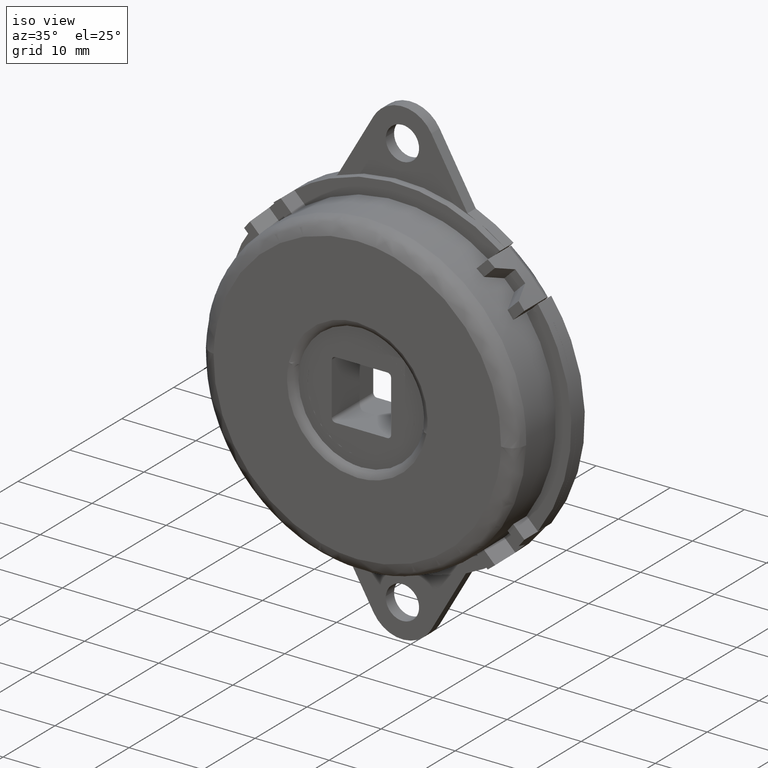
[diagram: clean part render]
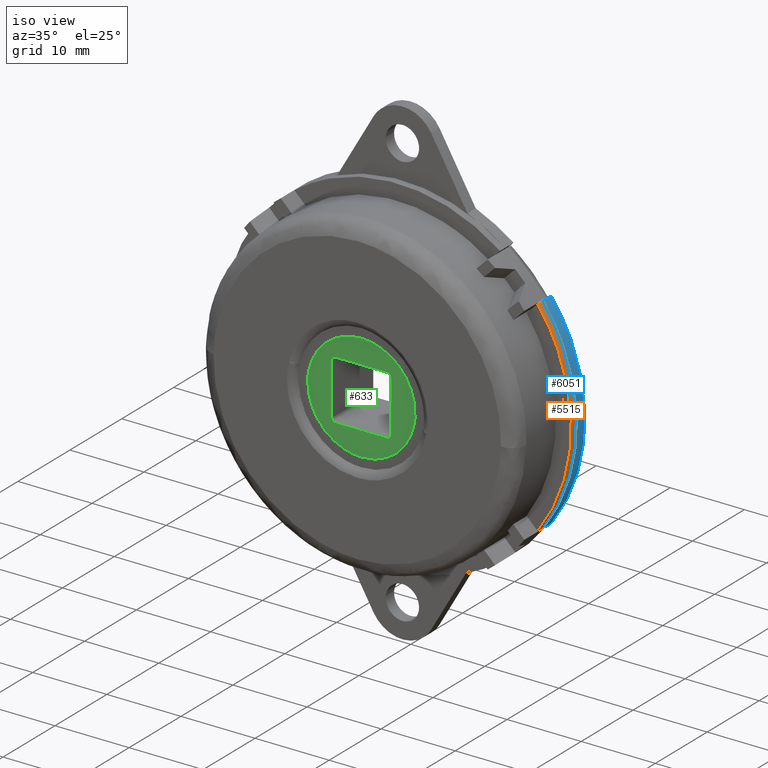
[diagram: same view with three faces highlighted in distinct colors, each labeled with its STEP entity id]
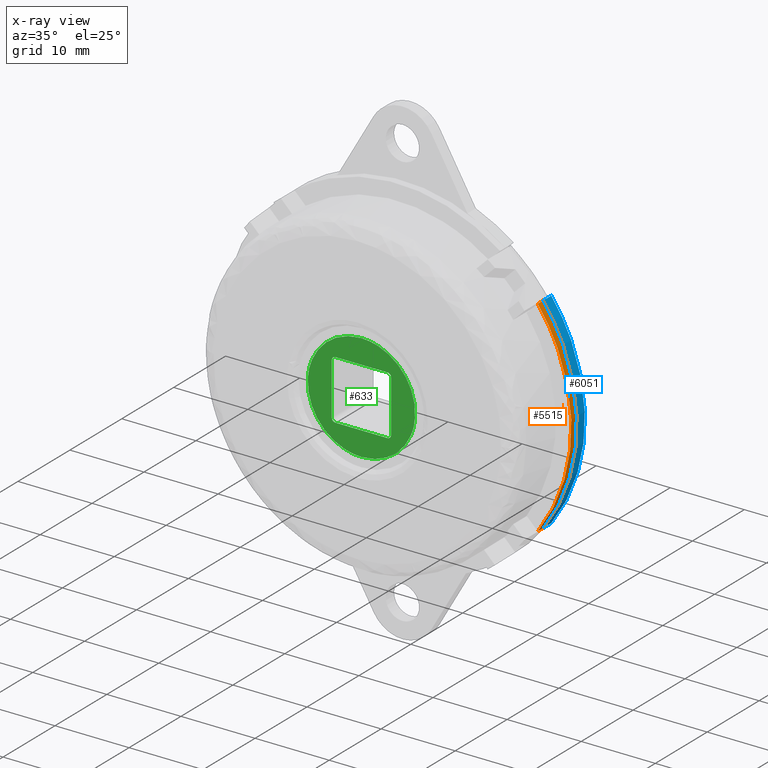
[diagram: x-ray of the same camera — body ghosted, the three highlighted faces saturated]
A machine part, iso view with three faces highlighted in distinct colors.
The next image is the same camera in x-ray (body ghosted, the three faces saturated) — at least one of them is partly hidden behind the body in this view.
Their STEP definitions:

[orange] entity #5515 — the highlighted face is a freeform B-spline surface patch.
#3506=CARTESIAN_POINT('',(18.966455291727549,-1.610000000000110,13.875286435490240));
#3507=VERTEX_POINT('',#3506);
#3513=CARTESIAN_POINT('',(18.966455291727549,-1.610000000000110,-13.875286435490240));
#3514=VERTEX_POINT('',#3513);
#3515=CARTESIAN_POINT('',(18.966455291727559,-1.610000000000110,-13.875286435490249));
#3516=CARTESIAN_POINT('',(29.117196202754354,-1.610000000000111,-5.204170E-015));
#3517=CARTESIAN_POINT('',(18.966455291727559,-1.610000000000110,13.875286435490240));
#3525=(BOUNDED_CURVE()B_SPLINE_CURVE(2,(#3515,#3516,#3517),.UNSPECIFIED.,.F.,.U.)CURVE()GEOMETRIC_REPRESENTATION_ITEM()QUASI_UNIFORM_CURVE()RATIONAL_B_SPLINE_CURVE((1.0,0.807083203903301,1.0))REPRESENTATION_ITEM(''));
#3526=EDGE_CURVE('',#3514,#3507,#3525,.T.);
#4465=CARTESIAN_POINT('',(18.966455291727549,-2.600000000000045,-13.875286435490240));
#4466=VERTEX_POINT('',#4465);
#4467=CARTESIAN_POINT('',(18.966455291727549,-1.610000000000110,-13.875286435490240));
#4468=CARTESIAN_POINT('',(18.966455291727549,-2.600000000000045,-13.875286435490240));
#4469=QUASI_UNIFORM_CURVE('',1,(#4467,#4468),.UNSPECIFIED.,.F.,.U.);
#4470=EDGE_CURVE('',#3514,#4466,#4469,.T.);
#4619=CARTESIAN_POINT('',(18.966455291727549,-2.600000000000045,13.875286435490240));
#4620=VERTEX_POINT('',#4619);
#4626=CARTESIAN_POINT('',(18.966455291727549,-1.610000000000110,13.875286435490240));
#4627=CARTESIAN_POINT('',(18.966455291727549,-2.600000000000045,13.875286435490240));
#4628=QUASI_UNIFORM_CURVE('',1,(#4626,#4627),.UNSPECIFIED.,.F.,.U.);
#4629=EDGE_CURVE('',#3507,#4620,#4628,.T.);
#5483=CARTESIAN_POINT('',(18.596743305418091,-2.624750000000043,-14.367015641126979));
#5484=CARTESIAN_POINT('',(18.596743305418091,-1.584631250000111,-14.367015641126979));
#5485=CARTESIAN_POINT('',(30.024783561698946,-2.624750000000043,0.425501917054557));
#5486=CARTESIAN_POINT('',(30.024783561698946,-1.584631250000111,0.425501917054557));
#5487=CARTESIAN_POINT('',(18.182146974931399,-2.624750000000043,14.888234663048291));
#5488=CARTESIAN_POINT('',(18.182146974931399,-1.584631250000111,14.888234663048291));
#5496=(BOUNDED_SURFACE()B_SPLINE_SURFACE(1,2,((#5483,#5485,#5487),(#5484,#5486,#5488)),.UNSPECIFIED.,.F.,.F.,.U.)B_SPLINE_SURFACE_WITH_KNOTS((2,2),(3,3),(0.0,1.0),(0.0,32.826269541624733),.UNSPECIFIED.)GEOMETRIC_REPRESENTATION_ITEM()RATIONAL_B_SPLINE_SURFACE(((1.0,0.782608156852414,1.0),(1.0,0.782608156852414,1.0)))REPRESENTATION_ITEM('')SURFACE());
#5497=ORIENTED_EDGE('',*,*,#4470,.F.);
#5498=ORIENTED_EDGE('',*,*,#3526,.T.);
#5499=ORIENTED_EDGE('',*,*,#4629,.T.);
#5500=CARTESIAN_POINT('',(18.966455291727559,-2.600000000000000,-13.875286435490249));
#5501=CARTESIAN_POINT('',(29.117196202754357,-2.600000000000001,-1.489802E-015));
#5502=CARTESIAN_POINT('',(18.966455291727549,-2.600000000000045,13.875286435490240));
#5510=(BOUNDED_CURVE()B_SPLINE_CURVE(2,(#5500,#5501,#5502),.UNSPECIFIED.,.F.,.U.)CURVE()GEOMETRIC_REPRESENTATION_ITEM()QUASI_UNIFORM_CURVE()RATIONAL_B_SPLINE_CURVE((1.0,0.807083203903300,1.0))REPRESENTATION_ITEM(''));
#5511=EDGE_CURVE('',#4466,#4620,#5510,.T.);
#5512=ORIENTED_EDGE('',*,*,#5511,.F.);
#5513=EDGE_LOOP('',(#5497,#5498,#5499,#5512));
#5514=FACE_OUTER_BOUND('',#5513,.T.);
#5515=ADVANCED_FACE('',(#5514),#5496,.T.);

[blue] entity #6051 — the highlighted face is a freeform B-spline surface patch.
#3471=CARTESIAN_POINT('',(18.966455291727549,-1.600000000000155,-13.875286435490240));
#3472=VERTEX_POINT('',#3471);
#3478=CARTESIAN_POINT('',(18.966455291727549,-1.600000000000155,13.875286435490240));
#3479=VERTEX_POINT('',#3478);
#3480=CARTESIAN_POINT('',(18.966455291727559,-1.600000000000155,-13.875286435490249));
#3481=CARTESIAN_POINT('',(29.117196202754354,-1.600000000000155,-5.204170E-015));
#3482=CARTESIAN_POINT('',(18.966455291727559,-1.600000000000155,13.875286435490240));
#3490=(BOUNDED_CURVE()B_SPLINE_CURVE(2,(#3480,#3481,#3482),.UNSPECIFIED.,.F.,.U.)CURVE()GEOMETRIC_REPRESENTATION_ITEM()QUASI_UNIFORM_CURVE()RATIONAL_B_SPLINE_CURVE((1.0,0.807083203903301,1.0))REPRESENTATION_ITEM(''));
#3491=EDGE_CURVE('',#3472,#3479,#3490,.T.);
#5722=CARTESIAN_POINT('',(18.966455291727549,0.0,13.875286435490240));
#5723=VERTEX_POINT('',#5722);
#5729=CARTESIAN_POINT('',(18.966455291727549,0.0,-13.875286435490240));
#5730=VERTEX_POINT('',#5729);
#5731=CARTESIAN_POINT('',(18.966455291727559,0.0,-13.875286435490249));
#5732=CARTESIAN_POINT('',(29.117196202754354,0.0,-5.204170E-015));
#5733=CARTESIAN_POINT('',(18.966455291727559,0.0,13.875286435490240));
#5741=(BOUNDED_CURVE()B_SPLINE_CURVE(2,(#5731,#5732,#5733),.UNSPECIFIED.,.F.,.U.)CURVE()GEOMETRIC_REPRESENTATION_ITEM()QUASI_UNIFORM_CURVE()RATIONAL_B_SPLINE_CURVE((1.0,0.807083203903301,1.0))REPRESENTATION_ITEM(''));
#5742=EDGE_CURVE('',#5730,#5723,#5741,.T.);
#6007=CARTESIAN_POINT('',(18.966455291727549,0.0,-13.875286435490240));
#6008=CARTESIAN_POINT('',(18.966455291727549,-1.600000000000155,-13.875286435490240));
#6009=QUASI_UNIFORM_CURVE('',1,(#6007,#6008),.UNSPECIFIED.,.F.,.U.);
#6010=EDGE_CURVE('',#5730,#3472,#6009,.T.);
#6022=CARTESIAN_POINT('',(18.966455291727549,0.0,13.875286435490240));
#6023=CARTESIAN_POINT('',(18.966455291727549,-1.600000000000155,13.875286435490240));
#6024=QUASI_UNIFORM_CURVE('',1,(#6022,#6023),.UNSPECIFIED.,.F.,.U.);
#6025=EDGE_CURVE('',#5723,#3479,#6024,.T.);
#6031=CARTESIAN_POINT('',(18.596743305418091,-1.640000000000159,-14.367015641126979));
#6032=CARTESIAN_POINT('',(18.596743305418091,0.041000000000004,-14.367015641126979));
#6033=CARTESIAN_POINT('',(30.024783561698946,-1.640000000000159,0.425501917054557));
#6034=CARTESIAN_POINT('',(30.024783561698946,0.041000000000004,0.425501917054557));
#6035=CARTESIAN_POINT('',(18.182146974931399,-1.640000000000159,14.888234663048291));
#6036=CARTESIAN_POINT('',(18.182146974931399,0.041000000000004,14.888234663048291));
#6044=(BOUNDED_SURFACE()B_SPLINE_SURFACE(1,2,((#6031,#6033,#6035),(#6032,#6034,#6036)),.UNSPECIFIED.,.F.,.F.,.U.)B_SPLINE_SURFACE_WITH_KNOTS((2,2),(3,3),(0.0,1.0),(0.0,32.826269541624733),.UNSPECIFIED.)GEOMETRIC_REPRESENTATION_ITEM()RATIONAL_B_SPLINE_SURFACE(((1.0,0.782608156852414,1.0),(1.0,0.782608156852414,1.0)))REPRESENTATION_ITEM('')SURFACE());
#6045=ORIENTED_EDGE('',*,*,#3491,.F.);
#6046=ORIENTED_EDGE('',*,*,#6010,.F.);
#6047=ORIENTED_EDGE('',*,*,#5742,.T.);
#6048=ORIENTED_EDGE('',*,*,#6025,.T.);
#6049=EDGE_LOOP('',(#6045,#6046,#6047,#6048));
#6050=FACE_OUTER_BOUND('',#6049,.T.);
#6051=ADVANCED_FACE('',(#6050),#6044,.T.);

[green] entity #633 — the highlighted face is a freeform B-spline surface patch.
#248=CARTESIAN_POINT('',(0.0,-9.500000000000000,7.250000000000000));
#249=VERTEX_POINT('',#248);
#250=CARTESIAN_POINT('',(-7.227650669561216,-9.500000000000000,0.568828444077202));
#251=VERTEX_POINT('',#250);
#252=CARTESIAN_POINT('',(0.0,-9.500000000000000,7.250000000000000));
#253=CARTESIAN_POINT('',(-6.701831064428386,-9.500000000000000,7.250000000000001));
#254=CARTESIAN_POINT('',(-7.227650669561216,-9.500000000000000,0.568828444077202));
#262=(BOUNDED_CURVE()B_SPLINE_CURVE(2,(#252,#253,#254),.UNSPECIFIED.,.F.,.U.)B_SPLINE_CURVE_WITH_KNOTS((3,3),(0.0,0.236331300630380),.UNSPECIFIED.)CURVE()GEOMETRIC_REPRESENTATION_ITEM()RATIONAL_B_SPLINE_CURVE((1.0,0.723120658607994,0.969723356166833))REPRESENTATION_ITEM(''));
#263=EDGE_CURVE('',#249,#251,#262,.T.);
#265=CARTESIAN_POINT('',(7.227650669561217,-9.500000000000000,-0.568828444077201));
#266=VERTEX_POINT('',#265);
#267=CARTESIAN_POINT('',(7.227650669561217,-9.500000000000000,-0.568828444077201));
#268=CARTESIAN_POINT('',(7.250000000000000,-9.500000000000000,-0.284853275856162));
#269=CARTESIAN_POINT('',(7.250000000000000,-9.500000000000000,0.0));
#270=CARTESIAN_POINT('',(7.250000000000000,-9.500000000000000,7.250000000000000));
#271=CARTESIAN_POINT('',(0.0,-9.500000000000000,7.250000000000000));
#279=(BOUNDED_CURVE()B_SPLINE_CURVE(2,(#267,#268,#269,#270,#271),.UNSPECIFIED.,.F.,.U.)B_SPLINE_CURVE_WITH_KNOTS((3,2,3),(0.736331300630380,0.750000000000000,1.0),.UNSPECIFIED.)CURVE()GEOMETRIC_REPRESENTATION_ITEM()RATIONAL_B_SPLINE_CURVE((0.969723356166834,0.983986122578554,1.0,0.707106781186548,1.0))REPRESENTATION_ITEM(''));
#280=EDGE_CURVE('',#266,#249,#279,.T.);
#347=CARTESIAN_POINT('',(0.0,-9.500000000000000,-7.250000000000000));
#348=VERTEX_POINT('',#347);
#349=CARTESIAN_POINT('',(-7.227650669561216,-9.500000000000000,0.568828444077202));
#350=CARTESIAN_POINT('',(-7.250000000000001,-9.500000000000000,0.284853275856162));
#351=CARTESIAN_POINT('',(-7.250000000000000,-9.500000000000000,0.0));
#352=CARTESIAN_POINT('',(-7.250000000000000,-9.500000000000000,-7.250000000000000));
#353=CARTESIAN_POINT('',(0.0,-9.500000000000000,-7.250000000000000));
#361=(BOUNDED_CURVE()B_SPLINE_CURVE(2,(#349,#350,#351,#352,#353),.UNSPECIFIED.,.F.,.U.)B_SPLINE_CURVE_WITH_KNOTS((3,2,3),(0.236331300630380,0.250000000000000,0.500000000000000),.UNSPECIFIED.)CURVE()GEOMETRIC_REPRESENTATION_ITEM()RATIONAL_B_SPLINE_CURVE((0.969723356166834,0.983986122578554,1.0,0.707106781186548,1.0))REPRESENTATION_ITEM(''));
#362=EDGE_CURVE('',#251,#348,#361,.T.);
#396=CARTESIAN_POINT('',(0.0,-9.500000000000000,-7.250000000000000));
#397=CARTESIAN_POINT('',(6.701831064428363,-9.500000000000000,-7.250000000000000));
#398=CARTESIAN_POINT('',(7.227650669561217,-9.500000000000000,-0.568828444077201));
#406=(BOUNDED_CURVE()B_SPLINE_CURVE(2,(#396,#397,#398),.UNSPECIFIED.,.F.,.U.)B_SPLINE_CURVE_WITH_KNOTS((3,3),(0.500000000000000,0.736331300630379),.UNSPECIFIED.)CURVE()GEOMETRIC_REPRESENTATION_ITEM()RATIONAL_B_SPLINE_CURVE((1.0,0.723120658607994,0.969723356166832))REPRESENTATION_ITEM(''));
#407=EDGE_CURVE('',#348,#266,#406,.T.);
#532=CARTESIAN_POINT('',(-7.972062229500849,-9.500000000000000,7.974274971896186));
#533=CARTESIAN_POINT('',(7.972062359140952,-9.500000000000000,7.974274971896186));
#534=CARTESIAN_POINT('',(-7.972062229500850,-9.500000000000000,-7.974275360816494));
#535=CARTESIAN_POINT('',(7.972062359140952,-9.500000000000000,-7.974275360816494));
#536=B_SPLINE_SURFACE_WITH_KNOTS('',1,1,((#532,#534),(#533,#535)),.UNSPECIFIED.,.F.,.F.,.U.,(2,2),(2,2),(0.0,15.944124588641801),(0.0,15.948550332712680),.UNSPECIFIED.);
#537=ORIENTED_EDGE('',*,*,#263,.T.);
#538=ORIENTED_EDGE('',*,*,#362,.T.);
#539=ORIENTED_EDGE('',*,*,#407,.T.);
#540=ORIENTED_EDGE('',*,*,#280,.T.);
#541=EDGE_LOOP('',(#537,#538,#539,#540));
#542=FACE_OUTER_BOUND('',#541,.T.);
#543=CARTESIAN_POINT('',(4.0,-9.500000000000000,3.500000000000000));
#544=VERTEX_POINT('',#543);
#545=CARTESIAN_POINT('',(3.500000000000000,-9.500000000000000,4.0));
#546=VERTEX_POINT('',#545);
#547=CARTESIAN_POINT('',(4.0,-9.500000000000000,3.500000000000000));
#548=CARTESIAN_POINT('',(4.000000000000000,-9.500000000000000,4.000000000000000));
#549=CARTESIAN_POINT('',(3.500000000000000,-9.500000000000000,4.0));
#557=(BOUNDED_CURVE()B_SPLINE_CURVE(2,(#547,#548,#549),.UNSPECIFIED.,.F.,.U.)CURVE()GEOMETRIC_REPRESENTATION_ITEM()QUASI_UNIFORM_CURVE()RATIONAL_B_SPLINE_CURVE((1.0,0.707106781186548,1.0))REPRESENTATION_ITEM(''));
#558=EDGE_CURVE('',#544,#546,#557,.T.);
#559=ORIENTED_EDGE('',*,*,#558,.F.);
#560=CARTESIAN_POINT('',(4.0,-9.500000000000000,-3.500000000000000));
#561=VERTEX_POINT('',#560);
#562=CARTESIAN_POINT('',(4.0,-9.500000000000000,-3.500000000000000));
#563=CARTESIAN_POINT('',(4.0,-9.500000000000000,3.500000000000000));
#564=QUASI_UNIFORM_CURVE('',1,(#562,#563),.UNSPECIFIED.,.F.,.U.);
#565=EDGE_CURVE('',#561,#544,#564,.T.);
#566=ORIENTED_EDGE('',*,*,#565,.F.);
#567=CARTESIAN_POINT('',(3.500000000000000,-9.500000000000000,-3.999999999999901));
#568=VERTEX_POINT('',#567);
#569=CARTESIAN_POINT('',(3.500000000000000,-9.500000000000000,-3.999999999999901));
#570=CARTESIAN_POINT('',(4.000000000000000,-9.500000000000000,-4.000000000000000));
#571=CARTESIAN_POINT('',(4.0,-9.500000000000000,-3.500000000000000));
#579=(BOUNDED_CURVE()B_SPLINE_CURVE(2,(#569,#570,#571),.UNSPECIFIED.,.F.,.U.)CURVE()GEOMETRIC_REPRESENTATION_ITEM()QUASI_UNIFORM_CURVE()RATIONAL_B_SPLINE_CURVE((1.0,0.707106781186548,1.0))REPRESENTATION_ITEM(''));
#580=EDGE_CURVE('',#568,#561,#579,.T.);
#581=ORIENTED_EDGE('',*,*,#580,.F.);
#582=CARTESIAN_POINT('',(-3.500000000000000,-9.500000000000000,-4.0));
#583=VERTEX_POINT('',#582);
#584=CARTESIAN_POINT('',(-3.500000000000000,-9.500000000000000,-4.0));
#585=CARTESIAN_POINT('',(3.500000000000000,-9.500000000000000,-3.999999999999901));
#586=QUASI_UNIFORM_CURVE('',1,(#584,#585),.UNSPECIFIED.,.F.,.U.);
#587=EDGE_CURVE('',#583,#568,#586,.T.);
#588=ORIENTED_EDGE('',*,*,#587,.F.);
#589=CARTESIAN_POINT('',(-4.0,-9.500000000000000,-3.500000000000000));
#590=VERTEX_POINT('',#589);
#591=CARTESIAN_POINT('',(-4.0,-9.500000000000000,-3.500000000000000));
#592=CARTESIAN_POINT('',(-4.000000000000000,-9.500000000000000,-4.000000000000000));
#593=CARTESIAN_POINT('',(-3.500000000000000,-9.500000000000000,-4.0));
#601=(BOUNDED_CURVE()B_SPLINE_CURVE(2,(#591,#592,#593),.UNSPECIFIED.,.F.,.U.)CURVE()GEOMETRIC_REPRESENTATION_ITEM()QUASI_UNIFORM_CURVE()RATIONAL_B_SPLINE_CURVE((1.0,0.707106781186548,1.0))REPRESENTATION_ITEM(''));
#602=EDGE_CURVE('',#590,#583,#601,.T.);
#603=ORIENTED_EDGE('',*,*,#602,.F.);
#604=CARTESIAN_POINT('',(-4.0,-9.500000000000000,3.500000000000000));
#605=VERTEX_POINT('',#604);
#606=CARTESIAN_POINT('',(-4.0,-9.500000000000000,3.500000000000000));
#607=CARTESIAN_POINT('',(-4.0,-9.500000000000000,-3.500000000000000));
#608=QUASI_UNIFORM_CURVE('',1,(#606,#607),.UNSPECIFIED.,.F.,.U.);
#609=EDGE_CURVE('',#605,#590,#608,.T.);
#610=ORIENTED_EDGE('',*,*,#609,.F.);
#611=CARTESIAN_POINT('',(-3.500000000000000,-9.500000000000000,4.0));
#612=VERTEX_POINT('',#611);
#613=CARTESIAN_POINT('',(-3.500000000000000,-9.500000000000000,4.0));
#614=CARTESIAN_POINT('',(-4.000000000000000,-9.500000000000000,4.000000000000000));
#615=CARTESIAN_POINT('',(-4.0,-9.500000000000000,3.500000000000000));
#623=(BOUNDED_CURVE()B_SPLINE_CURVE(2,(#613,#614,#615),.UNSPECIFIED.,.F.,.U.)CURVE()GEOMETRIC_REPRESENTATION_ITEM()QUASI_UNIFORM_CURVE()RATIONAL_B_SPLINE_CURVE((1.0,0.707106781186548,1.0))REPRESENTATION_ITEM(''));
#624=EDGE_CURVE('',#612,#605,#623,.T.);
#625=ORIENTED_EDGE('',*,*,#624,.F.);
#626=CARTESIAN_POINT('',(3.500000000000000,-9.500000000000000,4.0));
#627=CARTESIAN_POINT('',(-3.500000000000000,-9.500000000000000,4.0));
#628=QUASI_UNIFORM_CURVE('',1,(#626,#627),.UNSPECIFIED.,.F.,.U.);
#629=EDGE_CURVE('',#546,#612,#628,.T.);
#630=ORIENTED_EDGE('',*,*,#629,.F.);
#631=EDGE_LOOP('',(#559,#566,#581,#588,#603,#610,#625,#630));
#632=FACE_BOUND('',#631,.T.);
#633=ADVANCED_FACE('',(#542,#632),#536,.F.);